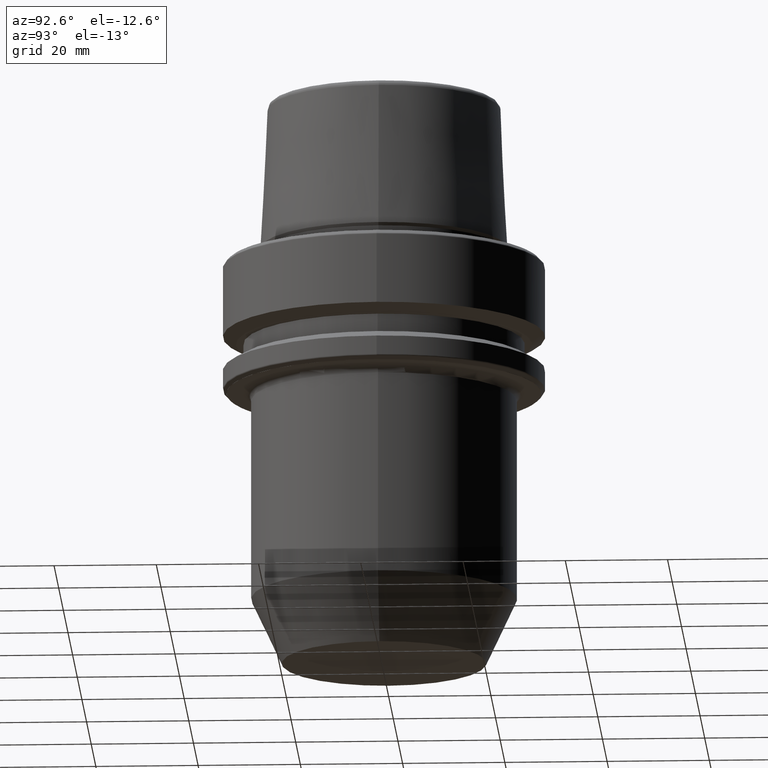
[diagram: clean part render]
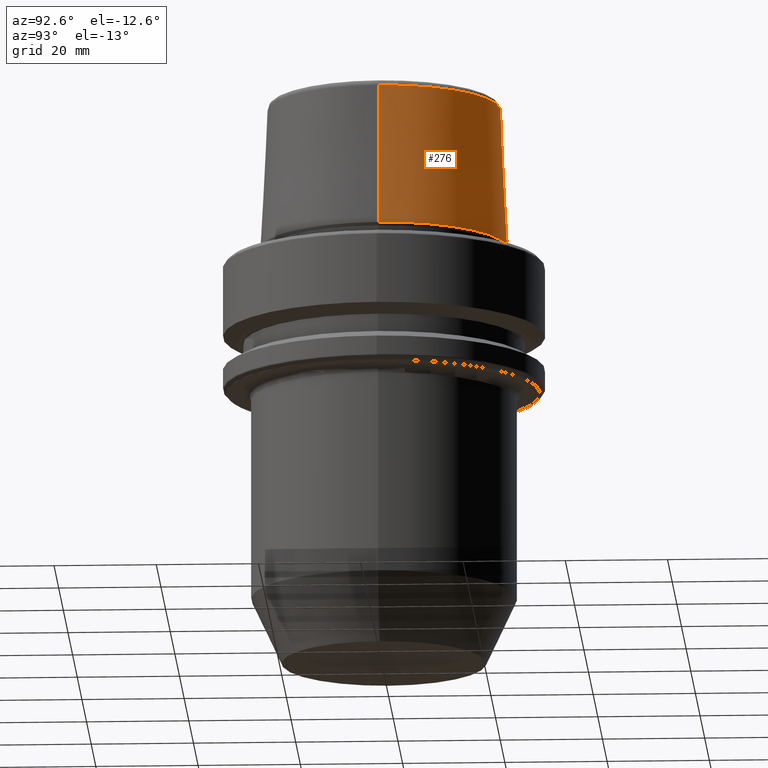
[diagram: same view with one face highlighted and labeled with its STEP entity id]
A machine part, auxiliary view. The second image highlights one B-rep face of the part: STEP entity #276.
In plain terms, the highlighted conical surface has half-angle 2.868 deg.
Its self-contained STEP definition (entity closure, byte-faithful):
#6 = EDGE_CURVE ( 'NONE', #439, #733, #497, .T. ) ;
#9 = VECTOR ( 'NONE', #338, 1000.000000000000200 ) ;
#19 = ORIENTED_EDGE ( 'NONE', *, *, #466, .F. ) ;
#24 = CARTESIAN_POINT ( 'NONE',  ( 24.17032625081241900, 0.0000000000000000000, 3.000000000000002700 ) ) ;
#34 = DIRECTION ( 'NONE',  ( 1.000000000000000000, 0.0000000000000000000, 0.0000000000000000000 ) ) ;
#133 = EDGE_CURVE ( 'NONE', #439, #1063, #686, .T. ) ;
#157 = EDGE_LOOP ( 'NONE', ( #491, #818, #689, #19 ) ) ;
#168 = CARTESIAN_POINT ( 'NONE',  ( -24.17032625081241900, 2.960011267740467600E-015, 3.000000000000002700 ) ) ;
#198 = DIRECTION ( 'NONE',  ( 0.0000000000000000000, 0.0000000000000000000, -1.000000000000000000 ) ) ;
#244 = CARTESIAN_POINT ( 'NONE',  ( 0.0000000000000000000, 0.0000000000000000000, 3.000000000000002700 ) ) ;
#276 = ADVANCED_FACE ( 'NONE', ( #558 ), #838, .T. ) ;
#335 = CARTESIAN_POINT ( 'NONE',  ( -24.17032625081241900, 0.0000000000000000000, 3.000000000000002700 ) ) ;
#338 = DIRECTION ( 'NONE',  ( 0.05003611051310812000, 6.127656258166108900E-018, -0.9987474093306675200 ) ) ;
#349 = VERTEX_POINT ( 'NONE', #168 ) ;
#366 = CIRCLE ( 'NONE', #452, 24.17032625081241900 ) ;
#439 = VERTEX_POINT ( 'NONE', #543 ) ;
#452 = AXIS2_PLACEMENT_3D ( 'NONE', #244, #661, #34 ) ;
#466 = EDGE_CURVE ( 'NONE', #1063, #349, #1162, .T. ) ;
#482 = EDGE_CURVE ( 'NONE', #733, #349, #366, .T. ) ;
#491 = ORIENTED_EDGE ( 'NONE', *, *, #133, .F. ) ;
#497 = LINE ( 'NONE', #550, #9 ) ;
#543 = CARTESIAN_POINT ( 'NONE',  ( 22.77957961851797100, 2.874852597157249900E-015, 30.76004333261571900 ) ) ;
#550 = CARTESIAN_POINT ( 'NONE',  ( 24.17032625081241900, 2.960011267740467600E-015, 3.000000000000002700 ) ) ;
#552 = DIRECTION ( 'NONE',  ( -0.0000000000000000000, -0.0000000000000000000, 1.000000000000000000 ) ) ;
#558 = FACE_OUTER_BOUND ( 'NONE', #157, .T. ) ;
#568 = VECTOR ( 'NONE', #1196, 1000.000000000000200 ) ;
#661 = DIRECTION ( 'NONE',  ( -0.0000000000000000000, -0.0000000000000000000, 1.000000000000000000 ) ) ;
#686 = CIRCLE ( 'NONE', #774, 22.77957961851797100 ) ;
#689 = ORIENTED_EDGE ( 'NONE', *, *, #482, .T. ) ;
#733 = VERTEX_POINT ( 'NONE', #24 ) ;
#746 = DIRECTION ( 'NONE',  ( -1.000000000000000000, 0.0000000000000000000, 0.0000000000000000000 ) ) ;
#753 = CARTESIAN_POINT ( 'NONE',  ( 0.0000000000000000000, 0.0000000000000000000, 30.76004333261571900 ) ) ;
#774 = AXIS2_PLACEMENT_3D ( 'NONE', #753, #552, #806 ) ;
#806 = DIRECTION ( 'NONE',  ( 1.000000000000000000, 0.0000000000000000000, 0.0000000000000000000 ) ) ;
#818 = ORIENTED_EDGE ( 'NONE', *, *, #6, .T. ) ;
#838 = CONICAL_SURFACE ( 'NONE', #987, 24.17032625081241900, 0.05005701257456005000 ) ;
#855 = CARTESIAN_POINT ( 'NONE',  ( 0.0000000000000000000, 0.0000000000000000000, 3.000000000000002700 ) ) ;
#987 = AXIS2_PLACEMENT_3D ( 'NONE', #855, #198, #746 ) ;
#1063 = VERTEX_POINT ( 'NONE', #1064 ) ;
#1064 = CARTESIAN_POINT ( 'NONE',  ( -22.77957961851797100, 0.0000000000000000000, 30.76004333261571900 ) ) ;
#1162 = LINE ( 'NONE', #335, #568 ) ;
#1196 = DIRECTION ( 'NONE',  ( -0.05003611051310812000, 0.0000000000000000000, -0.9987474093306675200 ) ) ;